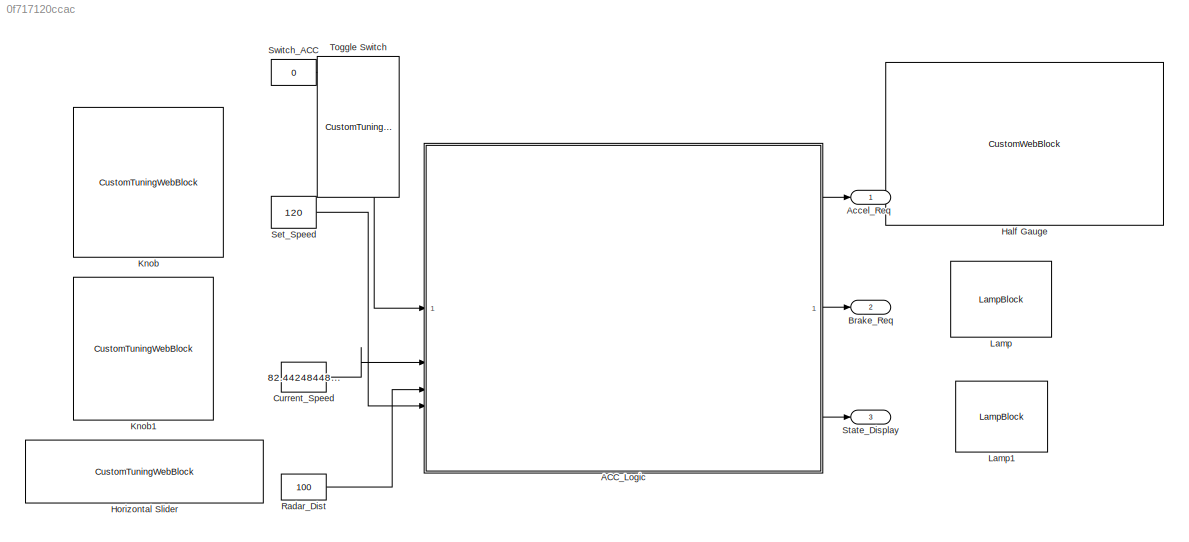
MODEL slx_0f717120ccac
KIND model
CONFIG AbsTol = auto
CONFIG EnableMultiTasking = off
CONFIG FixedStep = auto
CONFIG MaxStep = auto
CONFIG MinStep = auto
CONFIG RelTol = 1e-3
CONFIG SampleTimeConstraint = Unconstrained
CONFIG SolverName = VariableStepAuto
CONFIG StartTime = 0.0
CONFIG StopTime = inf
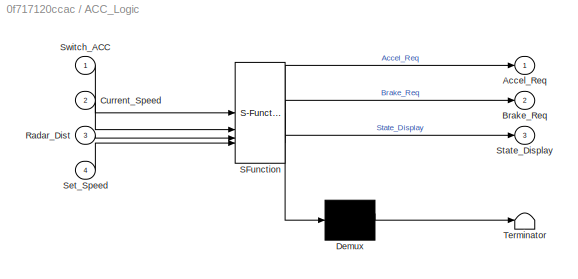
BLOCK [SubSystem] ACC_Logic
  ErrorFcn = Stateflow.Translate.translate
  PermitHierarchicalResolution = ExplicitOnly
  PortSchema = {"entries":[{"content":{"sides":[{"content":{"connectorIds":["In1","In4","In2","In3"]},"type":"ConnectorPlacement.EquallySpacedRectSide","uuid":"3b3ecdd8-b508-42a9-8be7-16feb3dc17f4"},{"content":{"connectorIds":["Out1","Out2","Out3"],"side":"RIGHT"},"type":"ConnectorPlacement.EquallySpacedRectSide","uuid":"dcbc371c-1403-49ec-9e88-f50f2d8d91ed"},{"content":{"side":"TOP"},"type":"ConnectorPlacement....<+254ch>
  SFBlockType = Chart
  TreatAsAtomicUnit = on
BLOCK [Demux] ACC_Logic/ Demux 
  Outputs = 1
BLOCK [S-Function] ACC_Logic/ SFunction 
  EnableBusSupport = on
  FunctionName = sf_sfun
  PortCounts = [4 4]
  SFcnIsStateOwnerBlock = off
  SFunctionDeploymentMode = off
  Tag = Stateflow S-Function 3
BLOCK [Terminator] ACC_Logic/ Terminator 
BLOCK [Outport] ACC_Logic/Accel_Req
BLOCK [Outport] ACC_Logic/Brake_Req
  Port = 2
BLOCK [Inport] ACC_Logic/Current_Speed
  Port = 2
BLOCK [Inport] ACC_Logic/Radar_Dist
  Port = 3
BLOCK [Inport] ACC_Logic/Set_Speed
  Port = 4
BLOCK [Outport] ACC_Logic/State_Display
  Port = 3
BLOCK [Inport] ACC_Logic/Switch_ACC
BLOCK [Outport] Accel_Req
BLOCK [Outport] Brake_Req
  Port = 2
BLOCK [Constant] Current_Speed 
  OutDataTypeStr = uint8
  Value = 82.44248448076574
BLOCK [CustomWebBlock] Half Gauge
  Configuration = {"components":[{"name":"CircularScaleComponent","settings":{"bounds":{"max":200,"min":0,"tickInterval":"auto"},"direction":"cw","flipLimits":0,"innerRadius":0.75,"internalTickHeightScaleFactor":1,"labelColor":[255,255,200],"labelFont":{"font":"Arial","fontSize":12},"labelRadius":0.528,"labelTransparency":1,"minorTickHeightScaleFactor":0.2,"needleImage":{"size":[200,50],"src":"data:image\/svg+xml;b...<+8210ch>
  LabelPosition = Hide
  ShowInitialText = on
BLOCK [CustomTuningWebBlock] Horizontal Slider
  Configuration = {"components":[{"name":"LinearScaleComponent","settings":{"bounds":{"max":100,"min":0,"tickInterval":"auto"},"internalTickHeightScaleFactor":0.5,"labelColor":[255,255,200],"labelFont":{"font":"Arial","fontSize":12},"labelOffset":0.05,"labelTransparency":1,"needleImage":{"size":[596,842],"src":"data:image\/svg+xml;base64,PD94bWwgdmVyc2lvbj0iMS4wIiBlbmNvZGluZz0idXRmLTgiPz4NCjwhLS0gR2VuZXJhdG9yOiBBZG...<+5490ch>
  LabelPosition = Hide
  ShowInitialText = on
BLOCK [CustomTuningWebBlock] Knob
  Configuration = {"components":[{"name":"CircularScaleComponent","settings":{"bounds":{"max":200,"min":0,"tickInterval":"auto"},"direction":"cw","flipLimits":0,"innerRadius":0.6636618227670849,"internalTickHeightScaleFactor":1,"labelColor":[255,255,200],"labelFont":{"font":"Arial","fontSize":12},"labelRadius":0.79,"labelTransparency":1,"minorTickHeightScaleFactor":0.2,"needleImage":{"size":[150,150],"src":"data:im...<+43670ch>
  LabelPosition = Hide
  ShowInitialText = on
BLOCK [CustomTuningWebBlock] Knob1
  Configuration = {"components":[{"name":"CircularScaleComponent","settings":{"bounds":{"max":200,"min":0,"tickInterval":"auto"},"direction":"cw","flipLimits":0,"innerRadius":0.6636618227670849,"internalTickHeightScaleFactor":1,"labelColor":[255,255,200],"labelFont":{"font":"Arial","fontSize":12},"labelRadius":0.79,"labelTransparency":1,"minorTickHeightScaleFactor":0.2,"needleImage":{"size":[150,150],"src":"data:im...<+43670ch>
  LabelPosition = Hide
  ShowInitialText = on
BLOCK [LampBlock] Lamp
  LabelPosition = Hide
BLOCK [LampBlock] Lamp1
  LabelPosition = Hide
BLOCK [Constant] Radar_Dist
  OutDataTypeStr = uint8
  Value = 100
BLOCK [Constant] Set_Speed 
  OutDataTypeStr = uint8
  Value = 120
BLOCK [Outport] State_Display
  Port = 3
BLOCK [Constant] Switch_ACC
  OutDataTypeStr = boolean
  Value = 0
BLOCK [CustomTuningWebBlock] Toggle Switch
  Configuration = {"components":[{"name":"CustomSwitchStateComponent","settings":{"position":[0,0,1,1],"showAllLabels":1,"states":[{"HitRegion":{"position":[0.5,0,1,0.5]},"Image":{"position":[0,0.24928571428571428,0.5014285714285714,1],"size":[0.5014285714285714,1],"src":"data:image\/svg+xml;base64,PHN2ZyB4bWxucz0iaHR0cDovL3d3dy53My5vcmcvMjAwMC9zdmciIHhtbG5zOnhsaW5rPSJodHRwOi8vd3d3LnczLm9yZy8xOTk5L3hsaW5rIiB2aWV3Qm...<+9138ch>
  LabelPosition = Hide
  ShowInitialText = on
LINE ACC_Logic:1 -> Accel_Req:1
LINE ACC_Logic:2 -> Brake_Req:1
LINE ACC_Logic:3 -> State_Display:1
LINE Current_Speed :1 -> ACC_Logic:2
LINE Radar_Dist:1 -> ACC_Logic:3
LINE Set_Speed :1 -> ACC_Logic:4
LINE Switch_ACC:1 -> ACC_Logic:1
CHART ACC_Logic states=3 transitions=6
  STATE_LABEL 'FOLLOWING\n%busy road\nentry:\nState_Display = 2;\nduring:\nAccel_Req = 0;\n% On freine si on est trop près\nBrake_Req = true;'
  STATE_LABEL 'OFF\nentry:\nAccel_Req = 0;\nBrake_Req = false;\nState_Display = 0;'
  STATE_LABEL 'CRUISING\n%Clear road\nentry:\nState_Display = 1;\nduring:\nBrake_Req = false;\n%  on accélère si on est trop lent\nAccel_Req = (Set_Speed - Current_Speed) * 2;'
CHART  states=0 transitions=0
